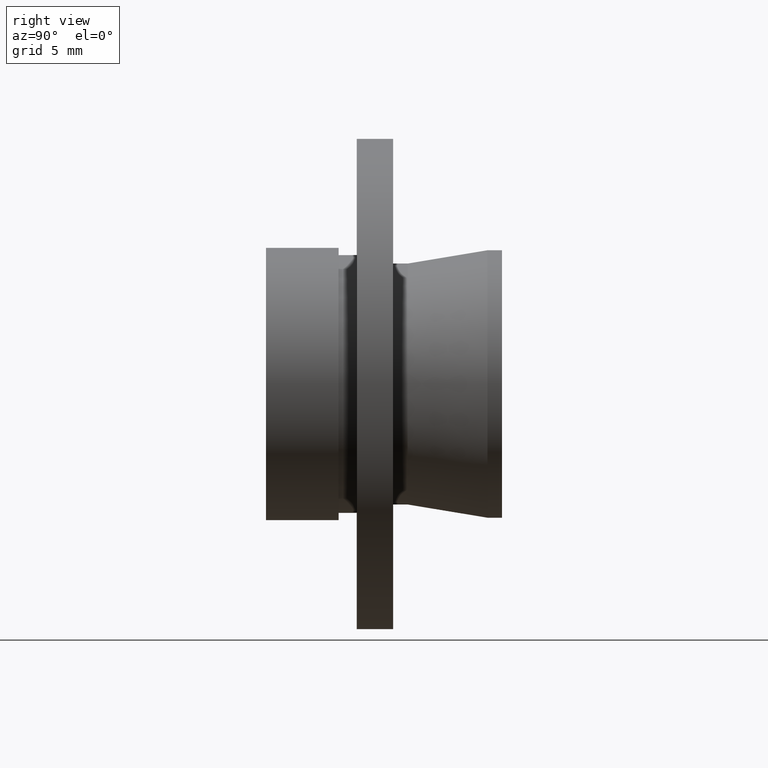
[diagram: clean part render]
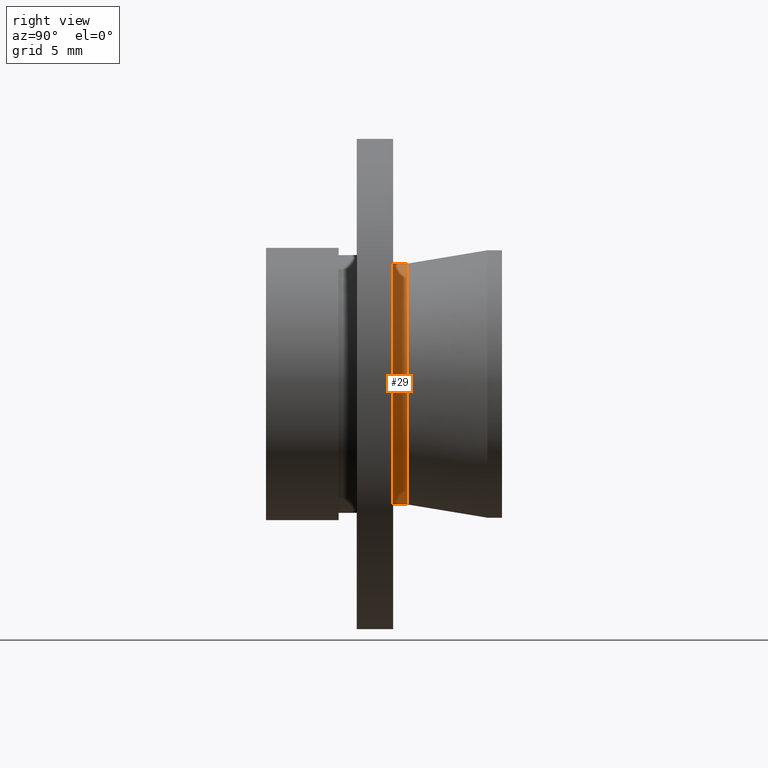
[diagram: same view with one face highlighted and labeled with its STEP entity id]
A machine part, right view. The second image highlights one B-rep face of the part: STEP entity #29.
In plain terms, the highlighted cylindrical surface (partial cylindrical patch) has radius 6.635 mm, axis along (-0, -1, -0).
Its self-contained STEP definition (entity closure, byte-faithful):
#1 = CARTESIAN_POINT ( 'NONE',  ( 0.0000000000000000000, 7.000000000000000000, -6.634999999999999800 ) ) ;
#29 = ADVANCED_FACE ( 'NONE', ( #241 ), #246, .T. ) ;
#37 = AXIS2_PLACEMENT_3D ( 'NONE', #338, #329, #221 ) ;
#58 = CARTESIAN_POINT ( 'NONE',  ( 8.125531512342689100E-016, 0.0000000000000000000, 6.635000000000000700 ) ) ;
#80 = EDGE_CURVE ( 'NONE', #459, #439, #542, .T. ) ;
#97 = CIRCLE ( 'NONE', #295, 6.635000000000000700 ) ;
#99 = VECTOR ( 'NONE', #103, 1000.000000000000000 ) ;
#103 = DIRECTION ( 'NONE',  ( -0.0000000000000000000, -1.000000000000000000, -0.0000000000000000000 ) ) ;
#122 = LINE ( 'NONE', #180, #511 ) ;
#177 = AXIS2_PLACEMENT_3D ( 'NONE', #409, #300, #571 ) ;
#180 = CARTESIAN_POINT ( 'NONE',  ( 0.0000000000000000000, 0.0000000000000000000, -6.635000000000000700 ) ) ;
#221 = DIRECTION ( 'NONE',  ( 0.0000000000000000000, 0.0000000000000000000, -1.000000000000000000 ) ) ;
#241 = FACE_OUTER_BOUND ( 'NONE', #480, .T. ) ;
#246 = CYLINDRICAL_SURFACE ( 'NONE', #177, 6.635000000000000700 ) ;
#254 = DIRECTION ( 'NONE',  ( -0.0000000000000000000, -1.000000000000000000, -0.0000000000000000000 ) ) ;
#295 = AXIS2_PLACEMENT_3D ( 'NONE', #355, #254, #462 ) ;
#299 = EDGE_CURVE ( 'NONE', #617, #490, #122, .T. ) ;
#300 = DIRECTION ( 'NONE',  ( -0.0000000000000000000, -1.000000000000000000, -0.0000000000000000000 ) ) ;
#327 = DIRECTION ( 'NONE',  ( -0.0000000000000000000, -1.000000000000000000, -0.0000000000000000000 ) ) ;
#329 = DIRECTION ( 'NONE',  ( -0.0000000000000000000, -1.000000000000000000, -0.0000000000000000000 ) ) ;
#337 = ORIENTED_EDGE ( 'NONE', *, *, #299, .F. ) ;
#338 = CARTESIAN_POINT ( 'NONE',  ( 0.0000000000000000000, 7.000000000000000000, 0.0000000000000000000 ) ) ;
#355 = CARTESIAN_POINT ( 'NONE',  ( 0.0000000000000000000, 7.800000000000000700, 0.0000000000000000000 ) ) ;
#387 = ORIENTED_EDGE ( 'NONE', *, *, #400, .F. ) ;
#400 = EDGE_CURVE ( 'NONE', #490, #439, #467, .T. ) ;
#409 = CARTESIAN_POINT ( 'NONE',  ( 0.0000000000000000000, 0.0000000000000000000, 0.0000000000000000000 ) ) ;
#412 = CARTESIAN_POINT ( 'NONE',  ( 8.572527594031473200E-016, 7.800000000000000700, -6.635000000000000700 ) ) ;
#434 = ORIENTED_EDGE ( 'NONE', *, *, #615, .T. ) ;
#439 = VERTEX_POINT ( 'NONE', #613 ) ;
#454 = CARTESIAN_POINT ( 'NONE',  ( 0.0000000000000000000, 7.800000000000000700, 6.635000000000000700 ) ) ;
#459 = VERTEX_POINT ( 'NONE', #454 ) ;
#462 = DIRECTION ( 'NONE',  ( 0.0000000000000000000, 0.0000000000000000000, -1.000000000000000000 ) ) ;
#467 = CIRCLE ( 'NONE', #37, 6.634999999999999800 ) ;
#480 = EDGE_LOOP ( 'NONE', ( #434, #633, #387, #337 ) ) ;
#490 = VERTEX_POINT ( 'NONE', #1 ) ;
#511 = VECTOR ( 'NONE', #327, 1000.000000000000000 ) ;
#542 = LINE ( 'NONE', #58, #99 ) ;
#571 = DIRECTION ( 'NONE',  ( 0.0000000000000000000, 0.0000000000000000000, -1.000000000000000000 ) ) ;
#613 = CARTESIAN_POINT ( 'NONE',  ( 8.125531512342688200E-016, 7.000000000000000000, 6.634999999999999800 ) ) ;
#615 = EDGE_CURVE ( 'NONE', #617, #459, #97, .T. ) ;
#617 = VERTEX_POINT ( 'NONE', #412 ) ;
#633 = ORIENTED_EDGE ( 'NONE', *, *, #80, .T. ) ;